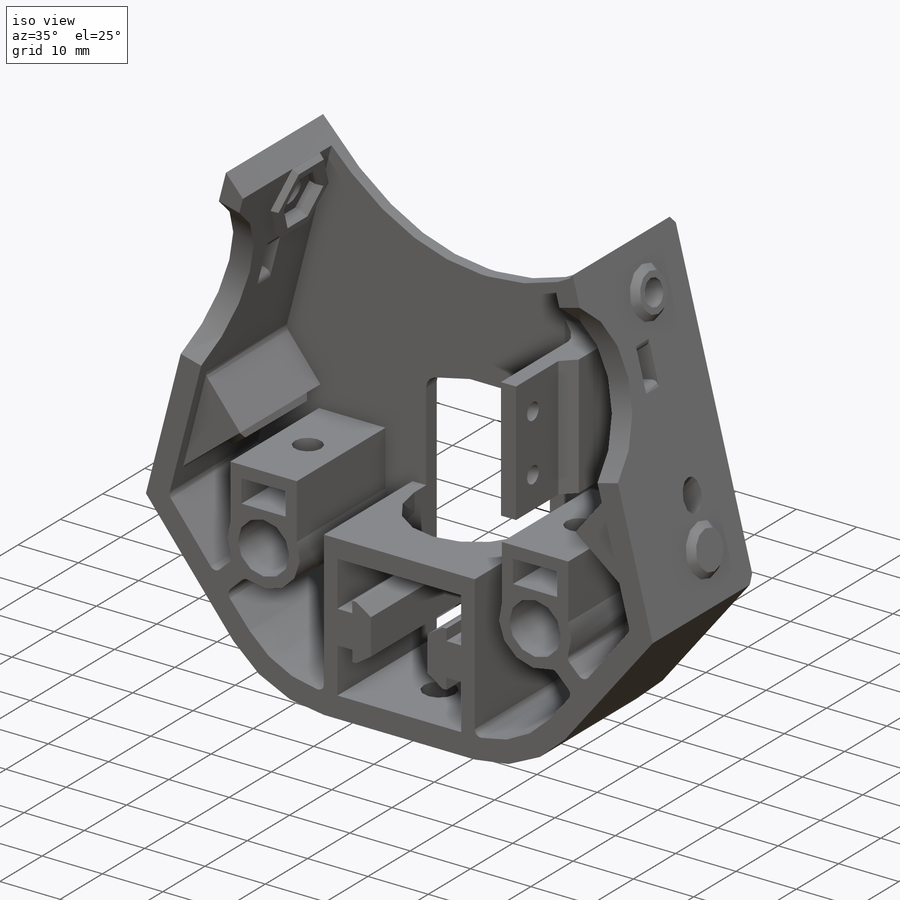
[diagram: iso view]
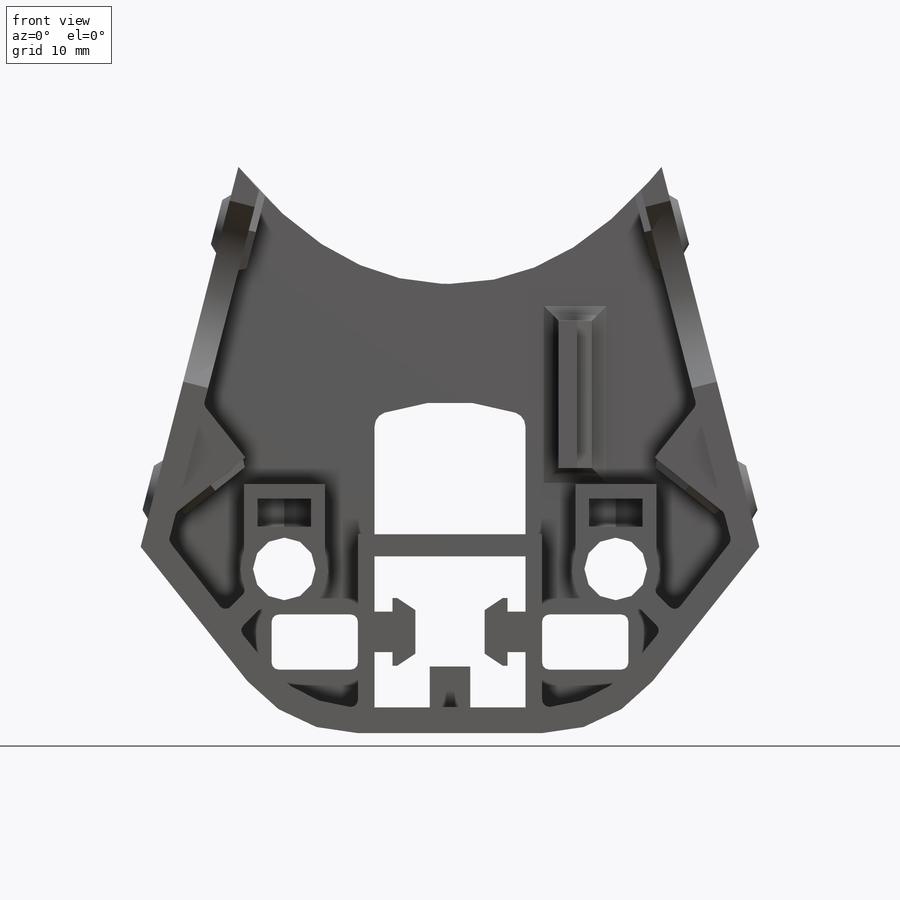
[diagram: front view]
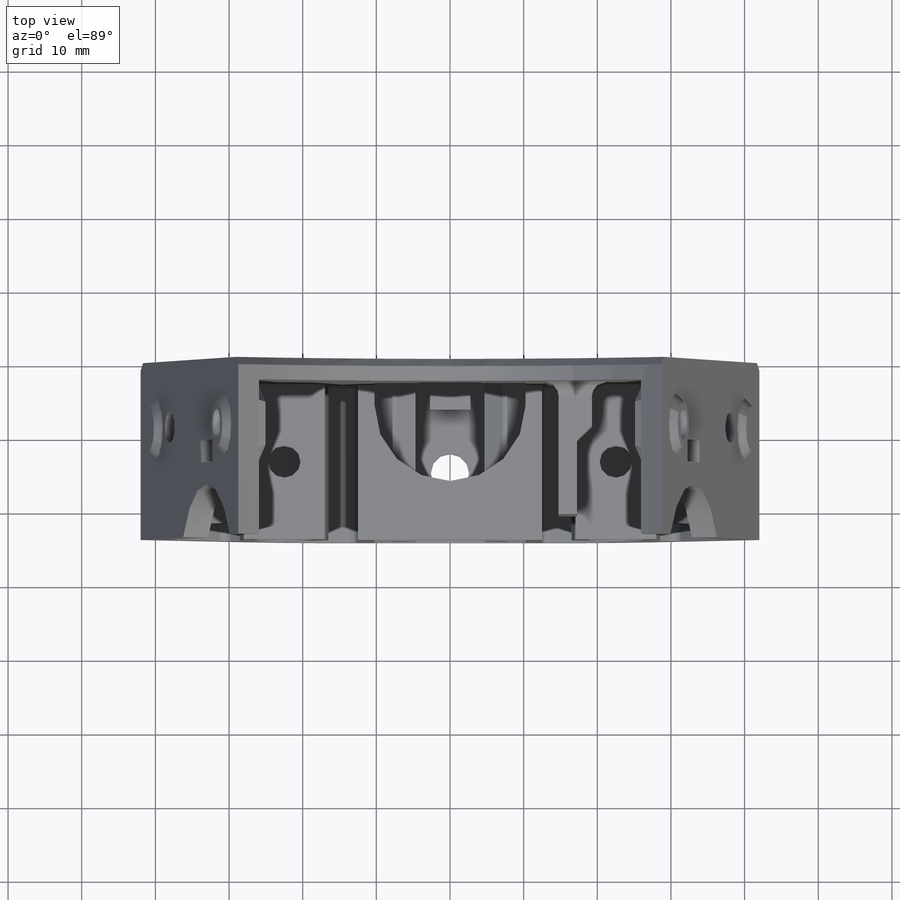
[diagram: top view]
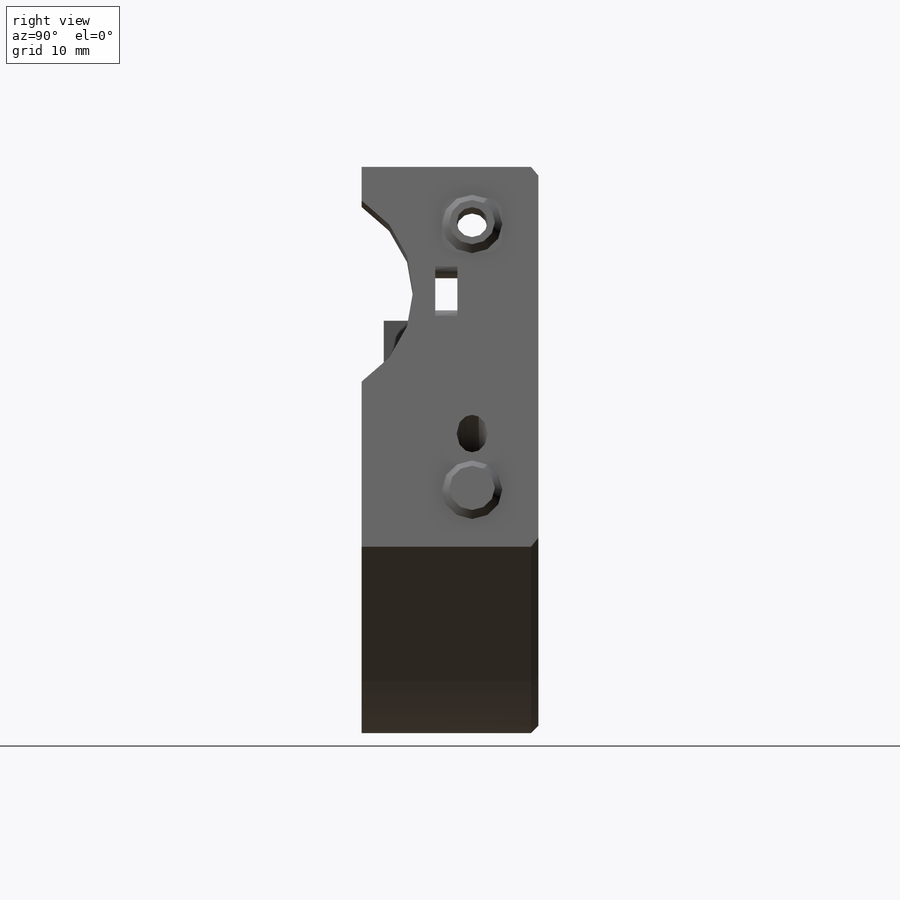
[diagram: right view]
SOLIDWORKS PART (.sldprt)
format: sldprt  version: not decoded by parser v0  size: 12,916,736 bytes
history: native  units: mm
features: sketch x78, cut_extrude x46, extrude x25, mirror x11, chamfer x8, fillet x4, pattern_linear x2, material x1, pattern_circular x1 (+18 scaffold rows collapsed; 7 parser-record rows omitted)
feature tree (201):
  scaffold x18  (default folders/planes/origin — collapsed)
  material  "Material <not specified>"
  parser-record x7  (decoder bookkeeping rows leaked as tree rows — omitted from the tree; the rows remain in map.json)
  sketch  "Sketch1"  dims[D1=20.5mm D2=25.0mm D3=27.0mm D4=3.5mm]
  extrude  "Boss-Square Tube"  Depth=60mm
  sketch  "Sketch2"  dims[D1=5.5mm D2=2.45mm]
  extrude  "Boss-Slot Boss"  [1 undecoded]
  sketch  "Sketch3"  dims[c1.D1=9.2mm c1.D2=0.635mm c1.D3=3.1mm c1.D4=2.715mm c2.D4=~123.631588deg]
  extrude  "Boss-T Boss"  [1 undecoded]
  pattern_circular  "CirPattern-Slot and T"  Count=4 Angle=360deg
  sketch  "Sketch5"
  cut_extrude  "Cut-Remove Wings"  [1 undecoded]
  sketch  "Sketch221"  dims[c1.D1=10.0mm c1.D2=~3.394583mm c2.D2=45.0deg]
  cut_extrude  "Cut-Extrude12"  [1 undecoded]
  sketch  "Sketch7"
  cut_extrude  "Cut-Cut Down Front"  Depth=6.5mm
  sketch  "Sketch11"  dims[D1=5.2mm D2=26.0mm]
  cut_extrude  "Cut-Extrusion Screw Hole"  [1 undecoded]
  sketch  "Sketch8"  dims[c1.D6=60.0mm c1.D2=~19.595963mm c1.D1=~143.715026mm c2.D1=30.0deg c2.D2=105.0mm c2.D3=20.0mm c2.D4=20.0mm c3.D3=5.0mm c3.D5=15.0mm c3.D1=~114.026678mm c4.D1=30.0deg c4.D2=114.0mm c4.D4=82.0mm c4.D6=25.0mm c5.D1=~67.05236mm c5.D5=~54.697909mm c6.D5=120.0deg c6.D1=119.0mm c6.D2=15.0mm]
  extrude  "Boss-Top Plate"  Depth=3mm
  sketch  "Sketch9"  dims[D1=27.0mm D5=3.5mm D6=1.0mm D7=5.0mm]
  mirror  "Mirror-Outer Wall"
  sketch  "Sketch13"  dims[D1=12.0mm D2=22.5mm D3=1.7mm]
  extrude  "Boss-Rod Boss"  [1 undecoded]
  sketch  "Sketch14"  dims[D1=8.3mm]
  cut_extrude  "Cut-Rod Hole"  Depth=23mm
  sketch  "Sketch34"  dims[c1.D1=~16.617342mm c2.D1=45.0deg c2.D2=1.0mm c2.D5=3.0mm c2.D6=1.0mm c2.D7=5.0mm]
  mirror  "Mirror-Rod Boss and Hole"
  sketch  "Sketch23"  dims[c1.D1=3.3mm c1.D3=185.0mm c1.D2=~119.013884mm c2.D2=18.0deg c2.D3=94.0mm c3.D2=50.0mm]
  cut_extrude  "Cut-Bed Clip Hole"  [1 undecoded]
  sketch  "Screw Hole Centers"  dims[D1=6.0mm D2=15.0mm]
  sketch  "Sketch210"  dims[D1=4.2mm]
  cut_extrude  "Cut-Screw Hole"  [1 undecoded]
  sketch  "Sketch35"  dims[D1=2.1mm]
  cut_extrude  "Cut-Cone Indentation"  Depth=1mm
  sketch  "Sketch211"  dims[D1=4.2mm]
  cut_extrude  "Cut-Screw Hole1"  [1 undecoded]
  sketch  "Sketch36"  dims[D1=2.1mm]
  cut_extrude  "Cut-Cone Indentation1"  Depth=1mm
  sketch  "Screw Dimple Centers"  dims[D1=15.0mm]
  sketch  "Sketch4"  dims[D1=4.2mm D2=2.0mm]
  extrude  "Boss-Cone"  Depth=1mm
  sketch  "Sketch213"  dims[D1=4.2mm]
  cut_extrude  "Cut-Screw Hole2"  [1 undecoded]
  sketch  "Sketch49"  dims[D1=4.2mm D2=2.0mm]
  extrude  "Boss-Cone1"  Depth=1mm
  sketch  "Sketch214"  dims[D1=4.2mm]
  cut_extrude  "Cut-Screw Hole3"  [1 undecoded]
  sketch  "Sketch215"  dims[D1=7.1mm]
  cut_extrude  "Cut-Extrude1"  Depth=1mm
  sketch  "Sketch37"  dims[D1=2.0mm]
  extrude  "Boss-Extrude21"  Depth=1mm
  sketch  "Sketch216"  dims[D1=7.1mm]
  cut_extrude  "Cut-Extrude11"  Depth=1mm
  sketch  "Sketch38"  dims[D1=2.0mm]
  extrude  "Boss-Extrude22"  Depth=1mm
  pattern_linear  "LPattern2"  Count1=2 Count2=1 Spacing1=11mm Spacing2=10mm
  sketch  "Sketch15"  dims[D1=16.0mm]
  cut_extrude  "Cut-Spectra Hole"  [1 undecoded]
  sketch  "Sketch16"  dims[D1=46.0mm]
  extrude  "Boss-Stepper Plate"  Depth=6mm
  sketch  "Sketch17"  dims[D1=29.0mm D2=29.0mm]
  cut_extrude  "Cut-Stepper Hole"  [1 undecoded]
  sketch  "Sketch18"  dims[c1.D1=3.75mm c1.D2=15.5mm c1.D3=29.0mm c2.D3=45.0deg]
  cut_extrude  "Cut-Stepper Screws"  [1 undecoded]
  sketch  "Sketch66"  dims[c1.D1=58.0mm c2.D1=60.0deg c3.D1=14.5mm c4.D1=35.0deg]
  cut_extrude  "Cut-Extrude5"  [1 undecoded]
  sketch  "Sketch19"
  extrude  "Boss-Bridge"  Depth=3mm
  sketch  "Sketch65"  dims[c1.D1=12.0mm c1.D2=12.0mm c1.D3=~9.471984mm c2.D3=50.0deg c2.D1=12.0mm c2.D4=1.0mm]
  extrude  "Boss-Wire Bridge"  [1 undecoded]
  sketch  "Sketch20"  dims[D1=8.0mm D2=1.5mm]
  cut_extrude  "Cut-Wire Hole"  [1 undecoded]
  sketch  "Sketch21"  dims[D1=23.0mm D2=3.0mm]
  cut_extrude  "Cut-Spool Pocket"  [1 undecoded]
  chamfer  "Chamfer-Edges"  Distance=10mm Angle=45deg
  chamfer  "Chamfer-Stepper Opening"  Distance=1.5mm Angle=45deg
  sketch  "Sketch33"  dims[D1=5.0mm D2=11.5mm D3=3.0mm]
  cut_extrude  "Cut-Allen Key Hole"  Depth=10mm
  sketch  "Sketch25"  dims[c1.D1=24.0mm c1.D2=22.0mm c2.D1=9.0mm c2.D5=1.0mm c2.D6=1.0mm c2.D7=5.0mm]
  sketch  "Sketch26"  dims[c1.D1=~4.099259mm c2.D1=161.0deg]
  extrude  "Boss-Angle Side"  Depth=1mm
  sketch  "Sketch27"  dims[c1.D1=3.0mm c1.D3=3.0mm c1.D2=8.75mm c2.D3=1.5mm c2.D4=1.0mm]
  extrude  "Boss-Hall Screw Boss"  Depth=2mm
  mirror  "Mirror1"
  sketch  "Sketch28"  dims[D1=3.0mm]
  extrude  "Boss-Hall Ledge"  [1 undecoded]
  sketch  "Sketch29"
  cut_extrude  "Cut-Ledge Cutback"  [1 undecoded]
  sketch  "Sketch30"  dims[D1=5.0mm D2=3.0mm]
  extrude  "Boss-Hall Angle Rest"  [1 undecoded]
  sketch  "Sketch31"  dims[D1=5.0mm]
  extrude  "Boss-Flat Rest"  [1 undecoded]
  sketch  "Sketch32"  dims[D1=8.0mm]
  cut_extrude  "Cut-Extrude2"  [1 undecoded]
  sketch  "Sketch217"
  cut_extrude  "Cut-Remove Motor Plate"  [1 undecoded]
  sketch  "Sketch41"  dims[D1=5.0mm]
  cut_extrude  "Cut-Side Wire Slot"  [1 undecoded]
  sketch  "Sketch42"
  cut_extrude  "Cut-Wire Slot Extension"  [1 undecoded]
  chamfer  "Chamfer-Wire Slot 1"  Distance=2.2mm Angle=25deg
  mirror  "Mirror-Side Wire Slot"
  chamfer  "Chamfer-Wire Slot 2"  Distance=2.2mm Angle=25deg
  sketch  "Sketch46"  dims[c1.D1=10.0mm c1.D2=40.0mm c2.D1=47.25mm]
  cut_extrude  "Cut-Center Cutout"  [1 undecoded]
  sketch  "Sketch47"  dims[c1.D1=100.0mm c1.D2=45.0mm c1.D3=3.0mm c2.D2=8.0mm c2.D3=~51.582946mm c3.D3=90.0deg c4.D3=~51.582946mm c5.D3=~75.575453deg]
  cut_extrude  "Cut-Remove Wing"  [1 undecoded]
  mirror  "Mirror-Remove Wing"
  sketch  "Sketch48"  dims[D5=3.5mm D6=1.0mm D7=5.0mm]
  mirror  "Mirror-Side Wall"
  sketch  "Sketch51"
  cut_extrude  "Cut-Trim Side Wall"  [1 undecoded]
  sketch  "Sketch86"  dims[D1=3.0mm D5=3.0mm D6=1.0mm D7=5.0mm]
  sketch  "Sketch60"  dims[D1=12.0mm D2=4.0mm]
  extrude  "Boss-Nut Triangle"  Depth=22mm
  sketch  "Sketch52"  dims[D1=4.2mm D2=8.0mm D3=6.0mm]
  cut_extrude  "Cut-Join Screw Holes"  Depth=10mm
  sketch  "Sketch61"  dims[D1=4.2mm]
  cut_extrude  "Cut-Inside Screw"  [1 undecoded]
  sketch  "Sketch54"  dims[c1.D1=4.2mm c1.D2=4.2mm c2.D1=8.0mm c2.D2=2.0mm]
  extrude  "Boss-Screw Hole Boss"  Depth=1mm
  sketch  "Sketch55"
  cut_extrude  "Cut-Recut Screw Holes"  [1 undecoded]
  sketch  "Sketch57"  dims[D1=7.2mm]
  cut_extrude  "Cut-Nut Slot"  Depth=1mm
  sketch  "Sketch62"  dims[D1=~4.432421mm]
  cut_extrude  "Cut-Extrude4"  Depth=1mm
  sketch  "Sketch63"  dims[D1=2.0mm]
  extrude  "Boss-Extrude2"  Depth=1mm
  sketch  "Sketch58"  dims[D1=2.0mm]
  extrude  "Boss-Nut Boss Sides"  Depth=1mm
  pattern_linear  "LPattern1"  Count1=2 Count2=1 Spacing1=11mm Spacing2=10mm
  mirror  "Mirror-Join Screw Boss and Hole"
  sketch  "Sketch67"
  cut_extrude  "Cut-Remove Motor Mount"  [1 undecoded]
  sketch  "Sketch68"  dims[D1=2.5mm D2=20.0mm D3=4.5mm D4=9.0mm]
  extrude  "Boss-Microswitch Stand"  Depth=18mm
  sketch  "Sketch69"  dims[D1=2.8mm D2=4.0mm D3=9.5mm]
  cut_extrude  "Cut-Microswitch screw holes"  [1 undecoded]
  sketch  "Sketch71"  dims[c1.D1=6.0mm c1.D2=5.0mm c1.D3=8.0mm c2.D1=7.5mm c2.D2=7.5mm c2.D3=~11.72149mm]
  cut_extrude  "Cut-Top Wire Hole"  [1 undecoded]
  mirror  "Mirror-Top Wire Hole"
  sketch  "Sketch72"  dims[D1=2.0mm]
  cut_extrude  "Cut-Curve Thread Pully"  [1 undecoded]
  fillet  "Fillet-Curve Thread Pully"  Radius=2mm
  sketch  "Sketch73"  dims[D1=11.0mm D2=5.5mm]
  extrude  "Boss-Rod Nut Boss"  [1 undecoded]
  sketch  "Sketch75"
  cut_extrude  "Cut-Recut Rod"  [1 undecoded]
  sketch  "Sketch79"  dims[D1=~2.947839mm]
  cut_extrude  "Cut-Rod Nut"  Depth=3.8mm
  sketch  "Sketch81"  dims[D1=4.4mm]
  cut_extrude  "Cut-Rod Screw"  [1 undecoded]
  sketch  "Sketch80"
  cut_extrude  "Cut-Rod Nut Slot"  [1 undecoded]
  mirror  "Mirror-Boss and Nut Slot"
  sketch  "Sketch219"
  cut_extrude  "Cut-Wire Opening"  [1 undecoded]
  mirror  "Mirror2"
  chamfer  "Chamfer-Outer Edge"  Distance=1mm Angle=45deg
  chamfer  "Chamfer1"  Distance=1mm Angle=45deg
  sketch  "Sketch218"  dims[D1=2.0mm]
  extrude  "Boss-Extrude23"  Depth=6mm
  chamfer  "Chamfer2"  Distance=2mm Angle=45deg
  fillet  "Fillet1"  Radius=2mm
  sketch  "Sketch223"  dims[D1=5.0mm D2=3.0mm]
  cut_extrude  "Cut-Extrude13"  [1 undecoded]
  sketch  "Sketch222"  dims[D1=~0.552324mm]
  extrude  "Inner Reinforcement Wall"  Depth=8mm
  mirror  "Mirror3"
  fillet  "Fillet2"  Radius=1mm
  sketch  "Sketch224"  dims[D1=~6.231158mm D2=3.0mm D3=~10.389623mm D4=~6.643678mm]
  cut_extrude  "Cut-Extrude14"  Depth=10mm
  chamfer  "Chamfer3"  Distance=5mm Angle=45deg
  fillet  "Fillet3"  Radius=1mm
  sketch  "Sketch225"  dims[D1=5.55mm D2=5.5mm]
  cut_extrude  "Cut-Extrude15"  Depth=18mm
decode coverage: 111 of 175 modeling features carry decoded parameters
note: ~ marks probable driven/reference dimensions
note: 41 parameter values undecoded
summary: no parameter record found for 41 features
note: suppression state not decoded; provenance and decode notes live in map.json
